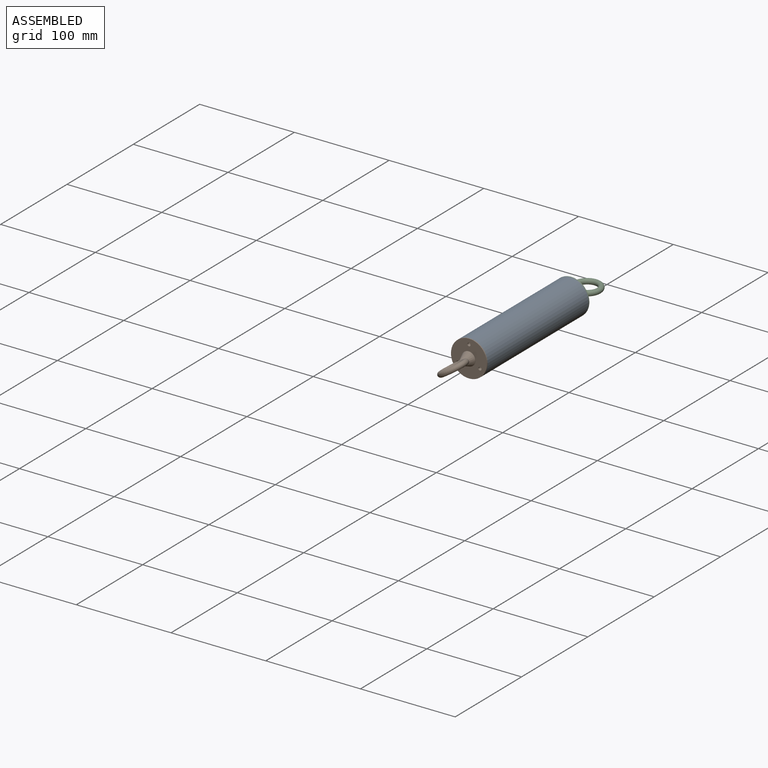
[diagram: assembled view]
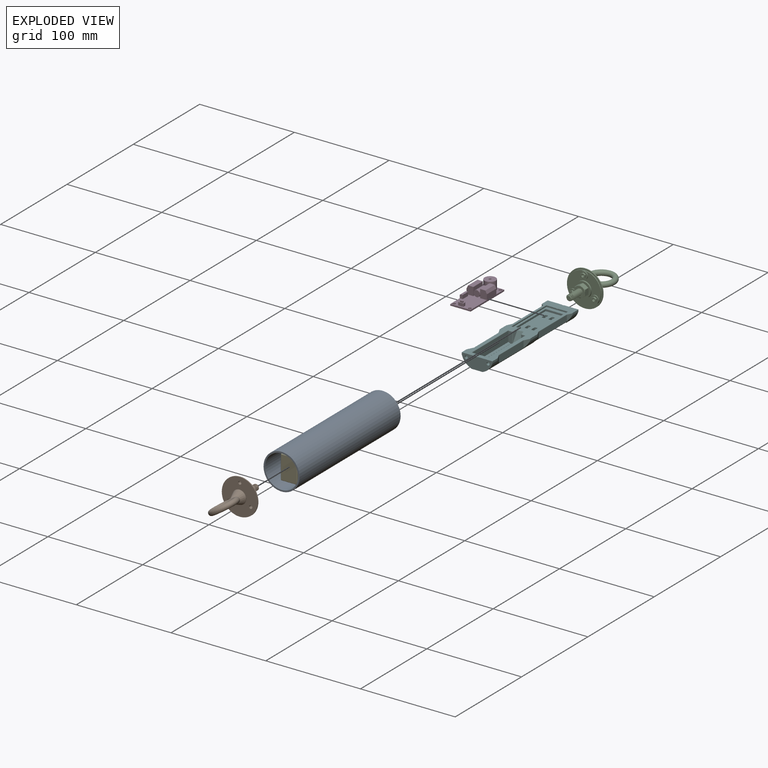
[diagram: exploded view]
GUIDED TOUR — MATED ASSEMBLY WITH SUBASSEMBLIES (Onshape document c6380fa0b7ce528e648f7f08, AutoMate assembly c6380fa0b7ce528e648f7f08_b65dfd8f77710f15b02fda3f_d95c44d1b8b798e81eafed5a_default)

This assembly has 24 component occurrences arranged in 6 top-level units: 4 individual components plus 2 subassemblies (S0, S1). The tour has two levels: first the top level, where each subassembly is treated as one rigid unit; then each subassembly is toured internally in its own section (nesting deeper than one subassembly level is flattened into its subassembly's section).

Components are labeled P0..P23 across the whole record; subassembly units are labeled S0..S1. A mate is a constraint between two units; its type names the relative motion it leaves free:
  CYLINDRICAL — leaves both rotation about and translation along the listed axis free,
  PLANAR — leaves sliding in the plane through the listed point (normal = the listed direction) and rotation about that normal free,
  SLIDER — leaves translation along the listed axis free.
Axis/direction vectors are unit vectors and 'through' points are millimeter coordinates, both in the assembly's world frame.

TOP-LEVEL MATES (between units; each subassembly's internal mates are listed in its own section)
  1. PLANAR "Planar 5": P13 <-> P19, direction (0.000, -1.000, 0.000) through (16.71, -214.99, -48.51) mm
  2. PLANAR "Planar 4": S0 <-> P0, direction (0.000, 1.000, 0.000) through (16.97, -231.22, -46.19) mm
  3. CYLINDRICAL "Cylindrical 1": P19 <-> S1, axis (0.000, 1.000, 0.000) through (28.51, -90.45, -52.85) mm
  4. PLANAR "Planar 1": P13 <-> P19, direction (-1.000, 0.000, 0.000) through (7.97, -192.76, -48.51) mm
  5. CYLINDRICAL "Cylindrical 5": P0 <-> S1, axis (0.000, 1.000, 0.000) through (16.97, -78.82, -46.19) mm
  6. CYLINDRICAL "Cylindrical 3": S0 <-> P19, axis (0.000, 1.000, 0.000) through (28.51, -229.21, -52.85) mm
  7. CYLINDRICAL "Cylindrical 4": S0 <-> P19, axis (0.000, 1.000, 0.000) through (5.44, -229.21, -52.85) mm
  8. PLANAR "Planar 3": P0 <-> S1, direction (0.000, 1.000, 0.000) through (16.97, -78.82, -46.19) mm
  9. CYLINDRICAL "Cylindrical 2": P19 <-> S1, axis (0.000, 1.000, 0.000) through (5.44, -90.45, -52.85) mm
  10. PLANAR "Planar 2": P13 <-> P19, direction (0.000, 0.000, -1.000) through (16.71, -192.76, -61.21) mm

TOP-LEVEL ASSEMBLY ORDER
  1. P19 — the base component [order heuristic]
  2. S0 [order heuristic]
  3. S1 [order heuristic]
  4. P6 [order heuristic]
  5. P13 [order heuristic]
  6. P0 [order heuristic]
Order-tag legend:
  [order heuristic] — this assembly is geometrically interlocked (no collision-free removal order exists), so components are listed in mate-graph order; insertion feasibility is not verified.

Of the 24 component occurrences, 3 carry the full construction recipe — the FeatureScript program that regenerates the part's solid from scratch; the rest are supplied as boundary geometry only. Each toured unit is shown spotlighted twice — assembled, then exploded with a leader line back to its socket (green = recipe-attached component, orange = geometry-only, blue = subassembly unit; the rest desaturated gray).
NOTE — this tour is split across 2 documents so each fits a 32k-token context. This is document 1: the component sections continue in the remaining 1 document, each repeating the header above.
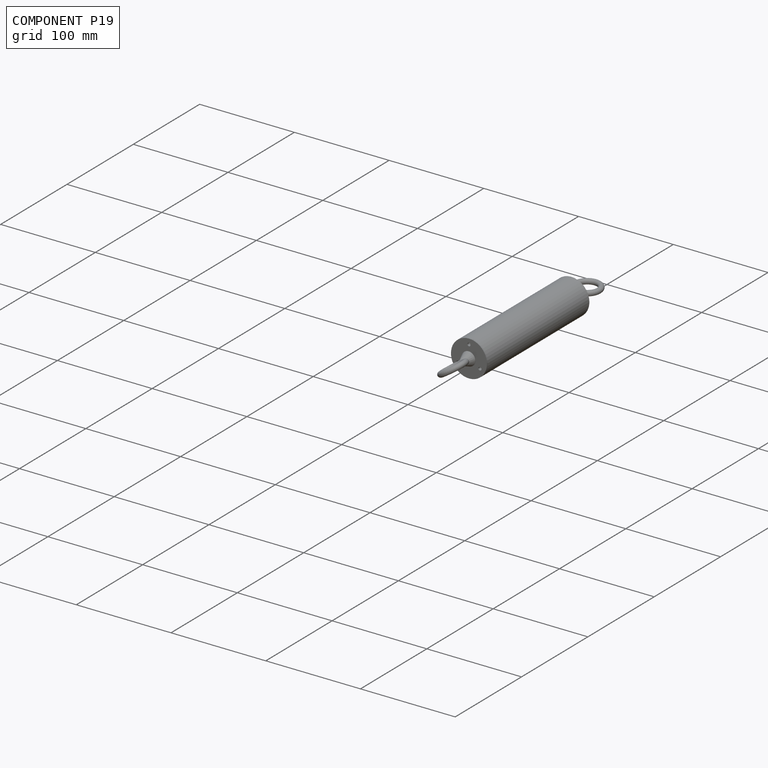
[diagram: component P19 — assembled]
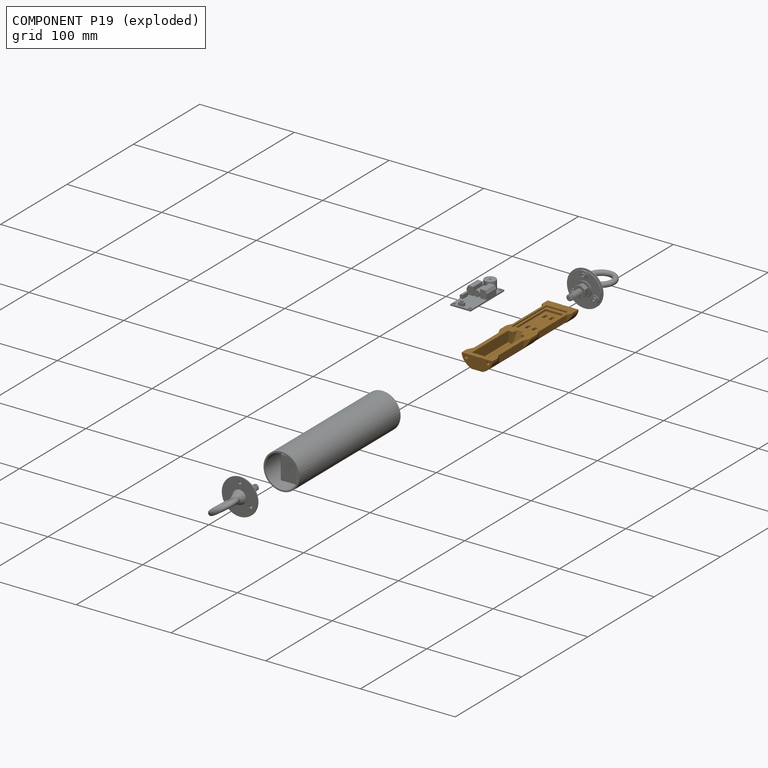
[diagram: component P19 — exploded]
COMPONENT P19 — geometry summary (no construction recipe available for this part):
  bounding box: 129.5 x 33.2 x 13.0 mm
  B-rep topology: 1 solid, 123 faces, 666 edges
  volume: 18228 mm^3 (33% of its bounding box)
Held by: PLANAR mate "Planar 5" to P13; CYLINDRICAL mate "Cylindrical 1" to P2; PLANAR mate "Planar 1" to P13; CYLINDRICAL mate "Cylindrical 3" to P1; CYLINDRICAL mate "Cylindrical 4" to P1; CYLINDRICAL mate "Cylindrical 2" to P2; PLANAR mate "Planar 2" to P13.
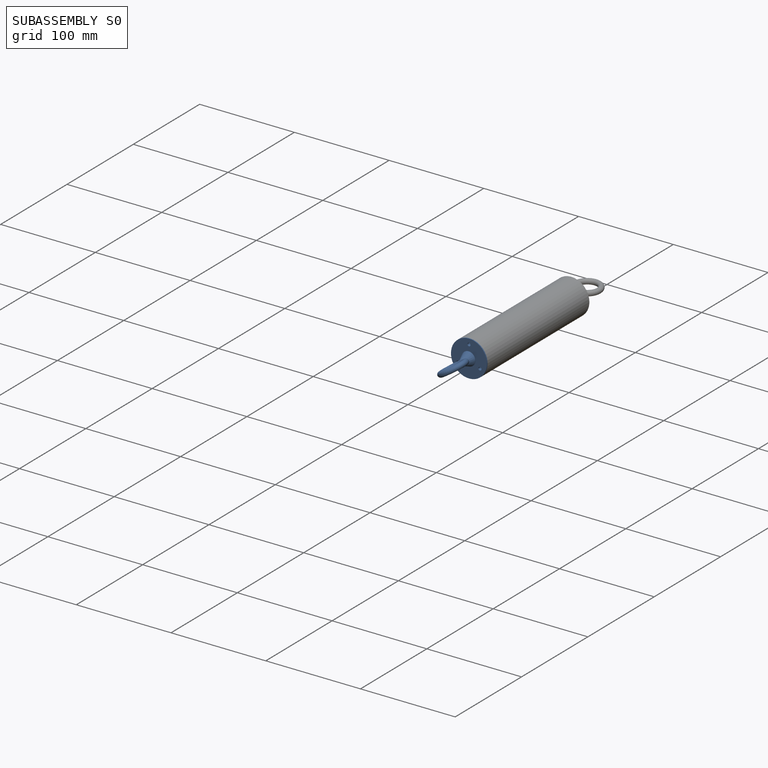
[diagram: subassembly S0 — assembled]
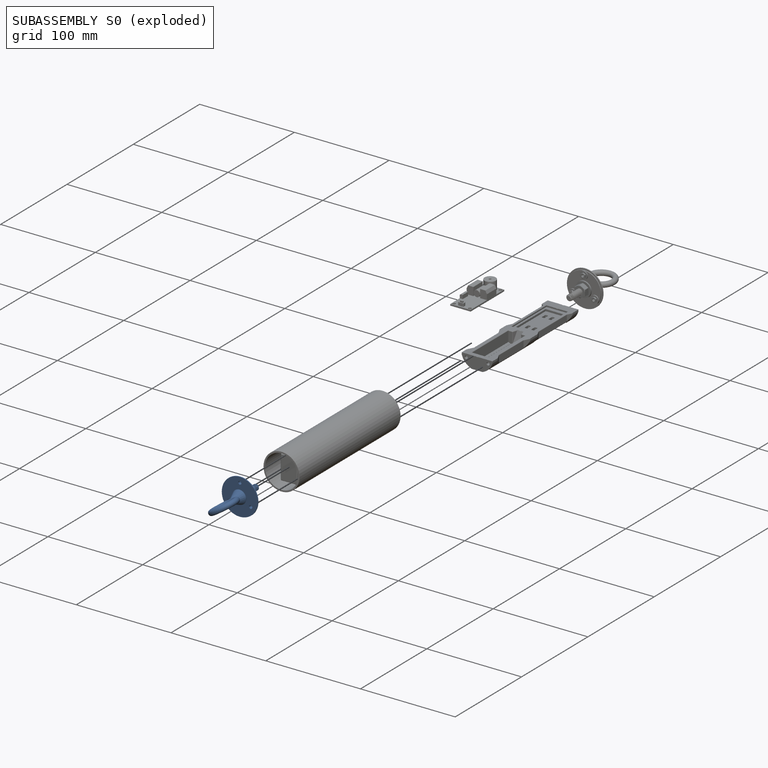
[diagram: subassembly S0 — exploded]
SUBASSEMBLY S0 — 10 components (P1, P3, P4, P11, P12, P14, P15, P18, P20, P23), of which 1 recipe-attached; toured below.
Held by: PLANAR mate "Planar 4" to P0; CYLINDRICAL mate "Cylindrical 3" to P19; CYLINDRICAL mate "Cylindrical 4" to P19.
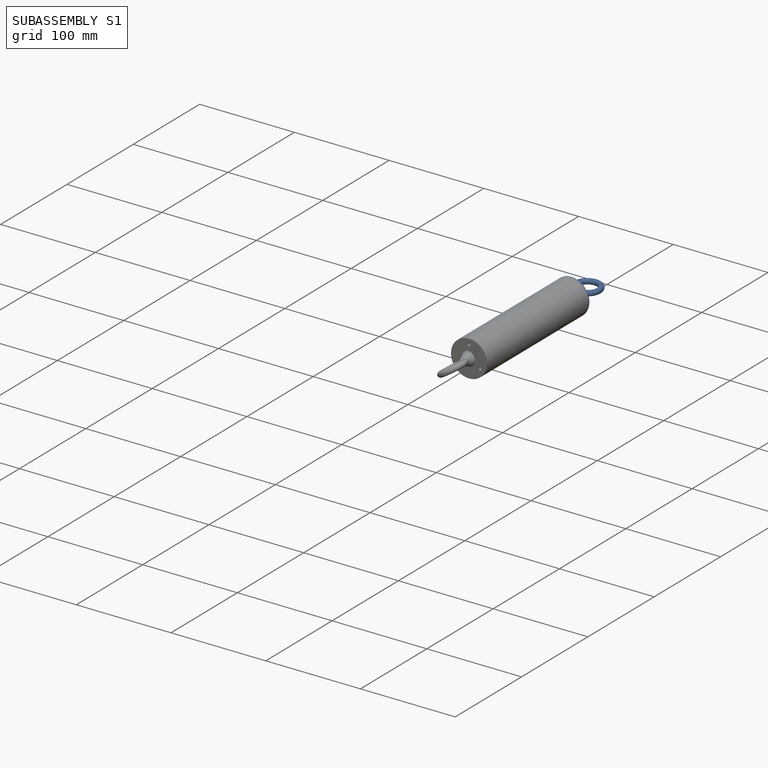
[diagram: subassembly S1 — assembled]
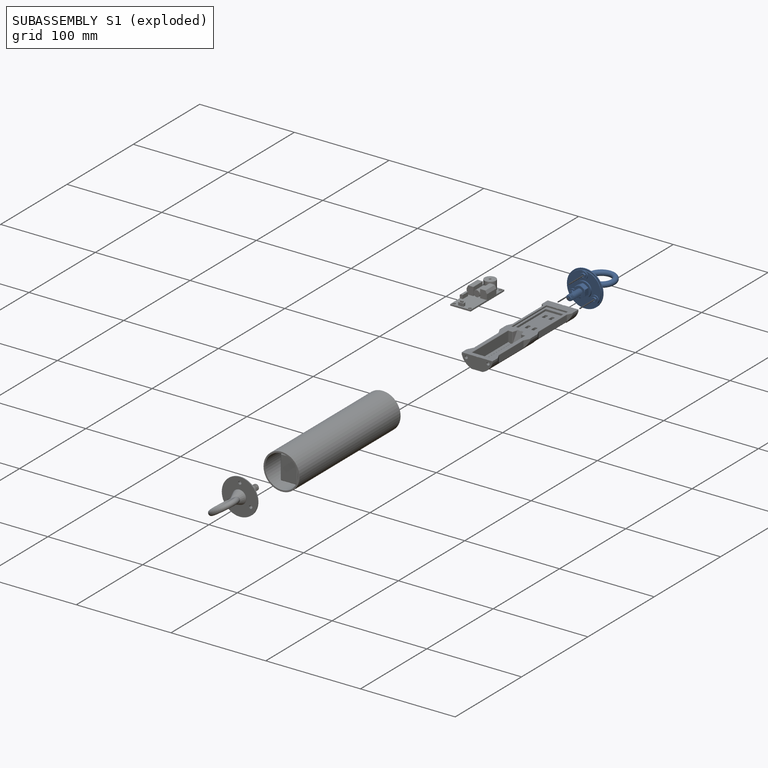
[diagram: subassembly S1 — exploded]
SUBASSEMBLY S1 — 10 components (P2, P5, P7, P8, P9, P10, P16, P17, P21, P22), of which 1 recipe-attached; toured below.
Held by: CYLINDRICAL mate "Cylindrical 1" to P19; CYLINDRICAL mate "Cylindrical 5" to P0; PLANAR mate "Planar 3" to P0; CYLINDRICAL mate "Cylindrical 2" to P19.
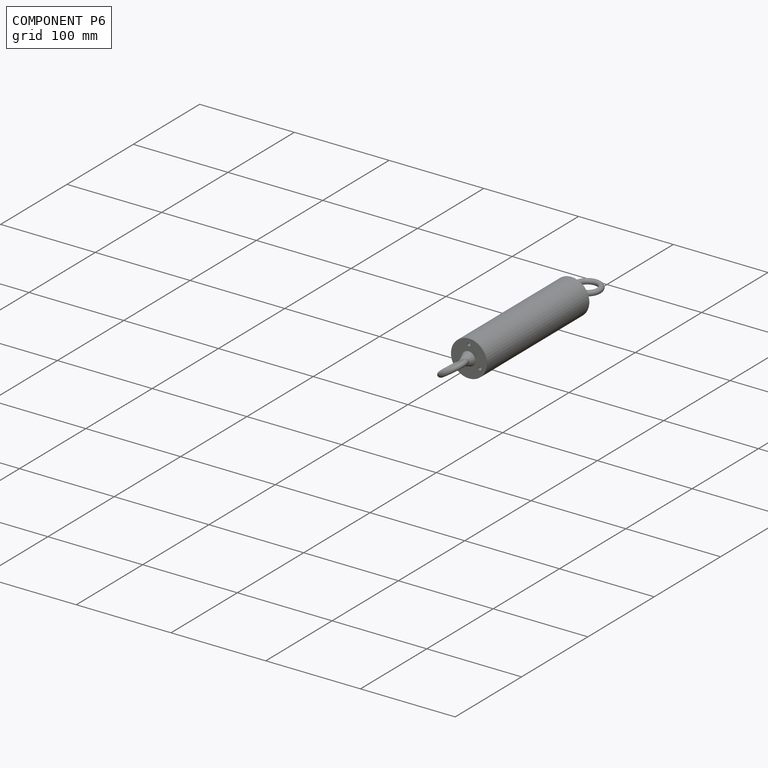
[diagram: component P6 — assembled]
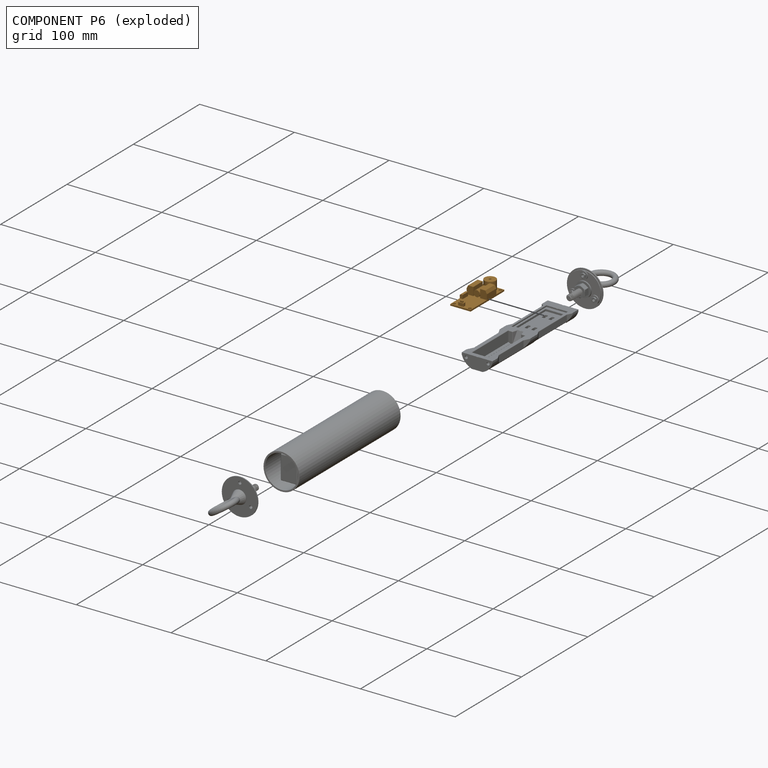
[diagram: component P6 — exploded]
COMPONENT P6 — geometry summary (no construction recipe available for this part):
  bounding box: 50.8 x 21.4 x 13.5 mm
  B-rep topology: 1 solid, 140 faces, 650 edges
  volume: 5264 mm^3 (36% of its bounding box)
Held by: no mates (free).
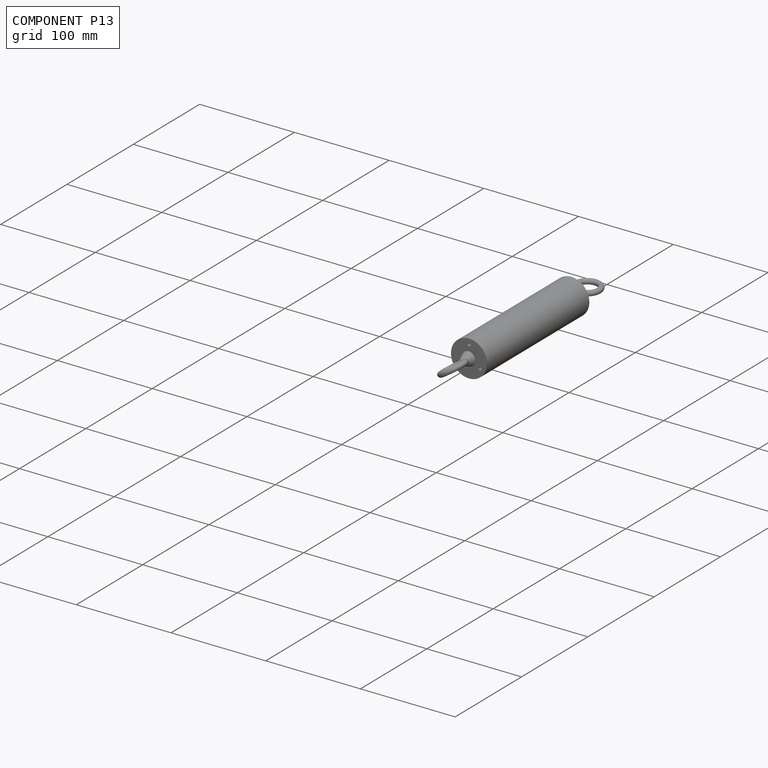
[diagram: component P13 — assembled]
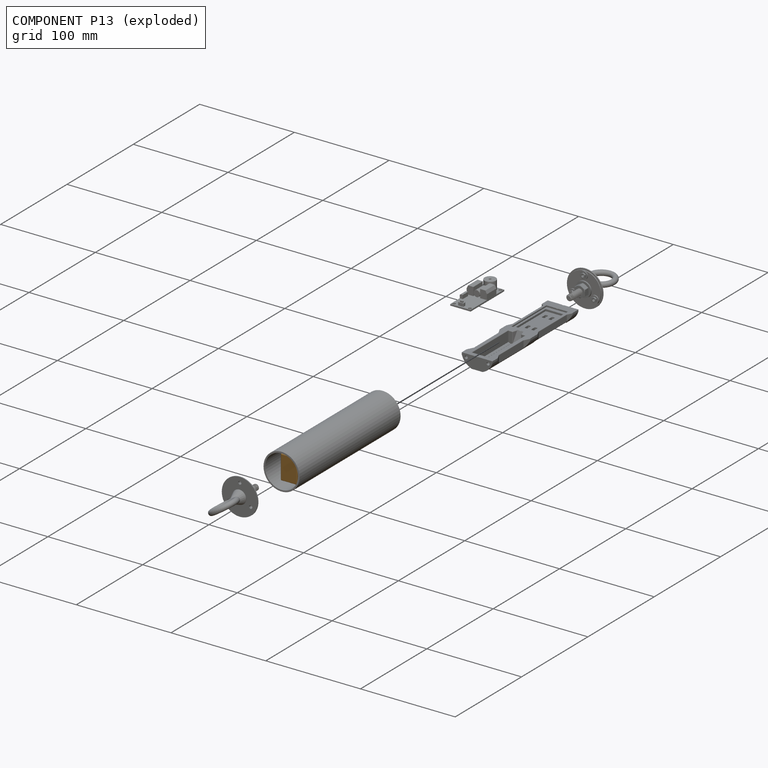
[diagram: component P13 — exploded]
COMPONENT P13 — geometry summary (no construction recipe available for this part):
  bounding box: 49.2 x 25.4 x 17.5 mm
  B-rep topology: 1 solid, 30 faces, 116 edges
  volume: 19987 mm^3 (92% of its bounding box)
  symmetry: mirror-symmetric across its y mid-plane
Held by: PLANAR mate "Planar 5" to P19; PLANAR mate "Planar 1" to P19; PLANAR mate "Planar 2" to P19.
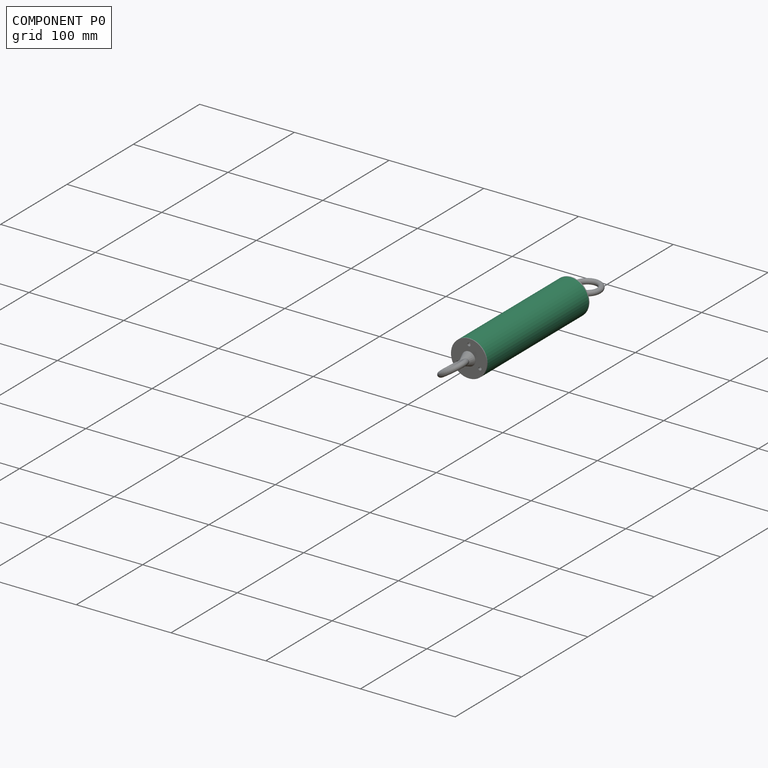
[diagram: component P0 — assembled]
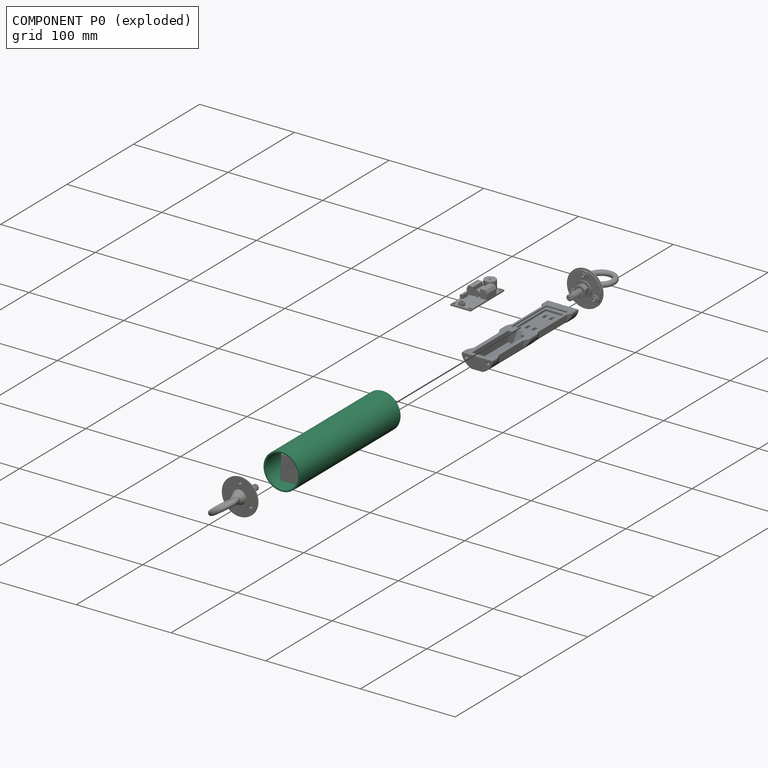
[diagram: component P0 — exploded]
COMPONENT P0 — recipe-attached (CADFS 00159999, mesh-verified: the recipe's output STEP matches this component's geometry to below the mesh-comparison resolution (tessellation chordal tolerance ~0.242 mm)).
Held by: PLANAR mate "Planar 4" to P1; CYLINDRICAL mate "Cylindrical 5" to P2; PLANAR mate "Planar 3" to P2.
Construction recipe (FeatureScript — the CAD program that rebuilds this solid; sketch coordinates are in the units given by the * unit suffixes, e.g. mm):

FeatureScript 1511;
import(path : "onshape/std/geometry.fs", version : "1511.0");
import(path : "onshape/std/common.fs", version : "1511.0");
const mm = millimeter;
const VERTEX = EntityType.VERTEX;
const EDGE = EntityType.EDGE;
const FACE = EntityType.FACE;
const BODY = EntityType.BODY;
function v(x, y){return vector(x, y);}
function OD(order){return orderDisambiguation(order);}
function OSD(set){return originalSetDisambiguation(set);}
function TD(topology){return topologyDisambiguation(topology);}
function TDD(query){return trueDependencyDisambiguation(query);}
function sQuery(a, b, c) {return sketchEntityQuery(a, b, c);}

annotation { "Feature Type Name" : "Feature", "Feature Type Description" : "" }
export const myFeature = defineFeature(function(context is Context, id is Id, definition is map)
    precondition{}
    {
        {
            var Q0;
            Q0=qCreatedBy(makeId("Right.planeOp"),FACE);
            var sketch = newSketch(context, id + "F0", { "sketchPlane" : qUnion([Q0])});
            skCircle(sketch, "E0", {"center": v(0, 0) * mm, "radius": 17.41 * mm});
            skCircle(sketch, "E1", {"center": v(0, 0) * mm, "radius": 19 * mm});
            skSolve(sketch);
        }
        {
            var Q0;
            Q0=makeQuery(id+"F0.imprint","IMPRINT",FACE,{"disambiguationData":[TD([[makeQuery(id+"F0.imprint","IMPRINT",EDGE,{"derivedFrom":sQuery(id+"F0.wireOp",EDGE,"E0")}),-1.0]])]});
            extrude(context, id + "F1", {"entities" : qUnion([Q0]), "depth" : 152.4 * mm});
        }
    });
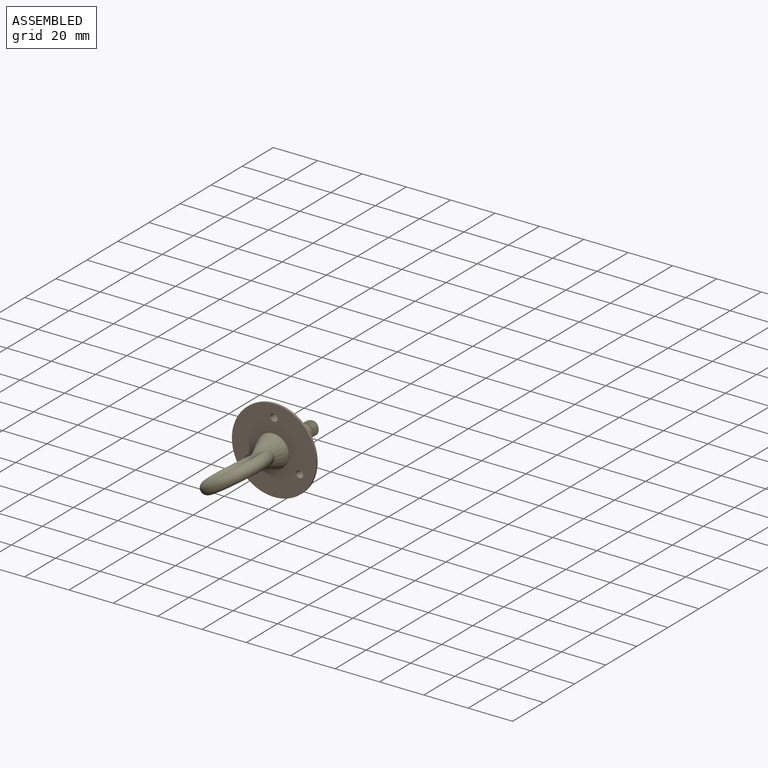
[diagram: subassembly S0 — assembled view]
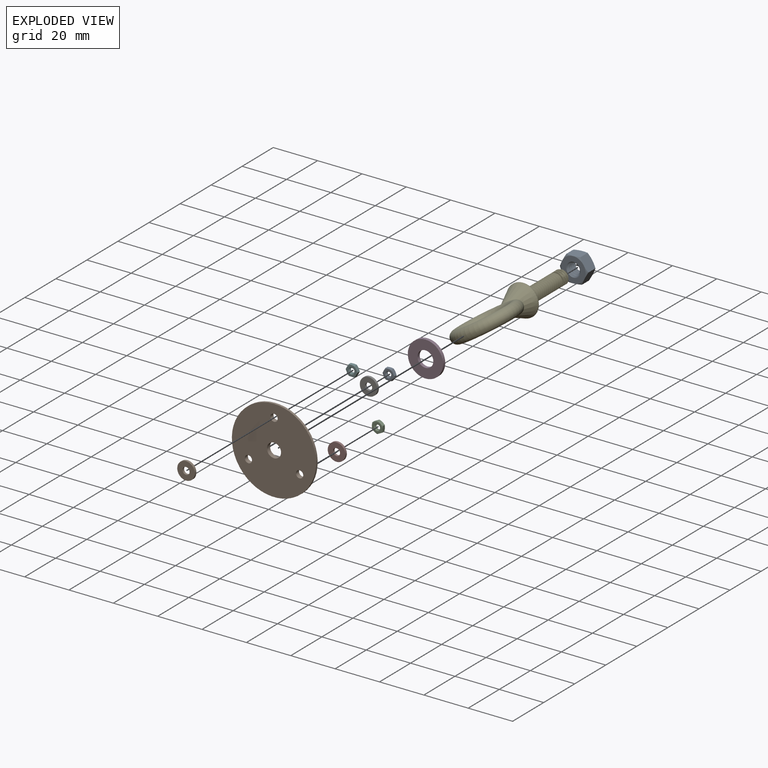
[diagram: subassembly S0 — exploded view]
SUBASSEMBLY S0 TOUR — 10 components, shown here in isolation at its own camera.

INTERNAL MATES
  1. PLANAR "Planar 3": P20 <-> P11, direction (0.000, -1.000, 0.000) through (16.97, -228.78, -46.19) mm
  2. PLANAR "Planar 1": P12 <-> P23, direction (0.000, 1.000, 0.000) through (19.63, -232.22, -44.45) mm
  3. CYLINDRICAL "Cylindrical 4": P15 <-> P23, axis (0.000, 1.000, 0.000) through (5.44, -229.21, -52.85) mm
  4. PLANAR "Planar 6": P3 <-> P23, direction (0.000, -1.000, 0.000) through (16.97, -230.22, -32.87) mm
  5. PLANAR "Planar 5": P1 <-> P15, direction (0.000, -1.000, 0.000) through (3.38, -229.21, -54.04) mm
  6. CYLINDRICAL "Cylindrical 6": P18 <-> P23, axis (0.000, 1.000, 0.000) through (28.51, -229.21, -52.85) mm
  7. CYLINDRICAL "Cylindrical 5": P3 <-> P23, axis (0.000, 1.000, 0.000) through (16.97, -229.21, -32.87) mm
  8. PLANAR "Planar 7": P18 <-> P23, direction (0.000, -1.000, 0.000) through (28.51, -230.22, -52.85) mm
  9. PLANAR "Planar 2": P23 <-> P11, direction (0.000, 1.000, 0.000) through (16.97, -230.22, -46.19) mm
  10. SLIDER "Slider 1": P11 <-> P12, axis (0.000, 1.000, 0.000) through (16.97, -228.78, -46.19) mm
  11. CYLINDRICAL "Cylindrical 2": P20 <-> P11, axis (0.000, -1.000, 0.000) through (16.97, -228.78, -46.19) mm
  12. CYLINDRICAL "Cylindrical 7": P4 <-> P23, axis (0.000, 1.000, 0.000) through (28.51, -227.62, -52.85) mm
  13. CYLINDRICAL "Cylindrical 3": P1 <-> P23, axis (0.000, 1.000, 0.000) through (5.44, -227.62, -52.85) mm
  14. PLANAR "Planar 4": P23 <-> P15, direction (0.000, 1.000, 0.000) through (16.97, -230.22, -46.19) mm
  15. CYLINDRICAL "Cylindrical 1": P23 <-> P12, axis (0.000, -1.000, 0.000) through (16.97, -232.22, -46.19) mm
  16. PLANAR "Planar 8": P4 <-> P18, direction (0.000, -1.000, 0.000) through (28.51, -229.21, -52.85) mm
  17. PLANAR "Planar 9": P14 <-> P3, direction (0.000, -1.000, 0.000) through (16.97, -229.21, -32.87) mm
  18. CYLINDRICAL "Cylindrical 8": P14 <-> P3, axis (0.000, 1.000, 0.000) through (16.97, -227.62, -32.87) mm
  19. CYLINDRICAL "Cylindrical 4": P15 <-> P23, axis (0.000, 1.000, 0.000) through (5.44, -229.21, -52.85) mm
  20. CYLINDRICAL "Cylindrical 5": P3 <-> P23, axis (0.000, 1.000, 0.000) through (16.97, -229.21, -32.87) mm
  21. PLANAR "Planar 2": P23 <-> P11, direction (0.000, 1.000, 0.000) through (16.97, -230.22, -46.19) mm
  22. PLANAR "Planar 3": P20 <-> P11, direction (0.000, -1.000, 0.000) through (16.97, -228.78, -46.19) mm
  23. PLANAR "Planar 4": P23 <-> P15, direction (0.000, 1.000, 0.000) through (16.97, -230.22, -46.19) mm
  24. PLANAR "Planar 9": P14 <-> P3, direction (0.000, -1.000, 0.000) through (16.97, -229.21, -32.87) mm
  25. PLANAR "Planar 6": P3 <-> P23, direction (0.000, -1.000, 0.000) through (16.97, -230.22, -32.87) mm
  26. CYLINDRICAL "Cylindrical 3": P1 <-> P23, axis (0.000, 1.000, 0.000) through (5.44, -227.62, -52.85) mm
  27. PLANAR "Planar 7": P18 <-> P23, direction (0.000, -1.000, 0.000) through (28.51, -230.22, -52.85) mm
  28. SLIDER "Slider 1": P11 <-> P12, axis (0.000, 1.000, 0.000) through (16.97, -228.78, -46.19) mm
  29. PLANAR "Planar 5": P1 <-> P15, direction (0.000, -1.000, 0.000) through (3.38, -229.21, -54.04) mm
  30. CYLINDRICAL "Cylindrical 2": P20 <-> P11, axis (0.000, -1.000, 0.000) through (16.97, -228.78, -46.19) mm
  31. CYLINDRICAL "Cylindrical 6": P18 <-> P23, axis (0.000, 1.000, 0.000) through (28.51, -229.21, -52.85) mm
  32. CYLINDRICAL "Cylindrical 8": P14 <-> P3, axis (0.000, 1.000, 0.000) through (16.97, -227.62, -32.87) mm
  33. PLANAR "Planar 1": P12 <-> P23, direction (0.000, 1.000, 0.000) through (19.63, -232.22, -44.45) mm
  34. CYLINDRICAL "Cylindrical 7": P4 <-> P23, axis (0.000, 1.000, 0.000) through (28.51, -227.62, -52.85) mm
  35. PLANAR "Planar 8": P4 <-> P18, direction (0.000, -1.000, 0.000) through (28.51, -229.21, -52.85) mm
  36. CYLINDRICAL "Cylindrical 1": P23 <-> P12, axis (0.000, -1.000, 0.000) through (16.97, -232.22, -46.19) mm

ASSEMBLY ORDER (within the subassembly)
  1. P23 — the base component [order heuristic]
  2. P11 — core [order heuristic]
  3. P12 — core [order heuristic]
  4. P20 — core [order heuristic]
  5. P15 [order verified]
  6. P18 [order verified]
  7. P1 [order verified]
  8. P4 [order verified]
  9. P3 [order verified]
  10. P14 [order verified]
Order-tag legend:
  [order verified] — this step's position reverses a verified removal order: the component was checked to insert without passing through the ones already placed.
  [order heuristic] — the first 4 components form the assembly's core: parts whose collision-free extraction could not be verified, listed in mate-graph order.
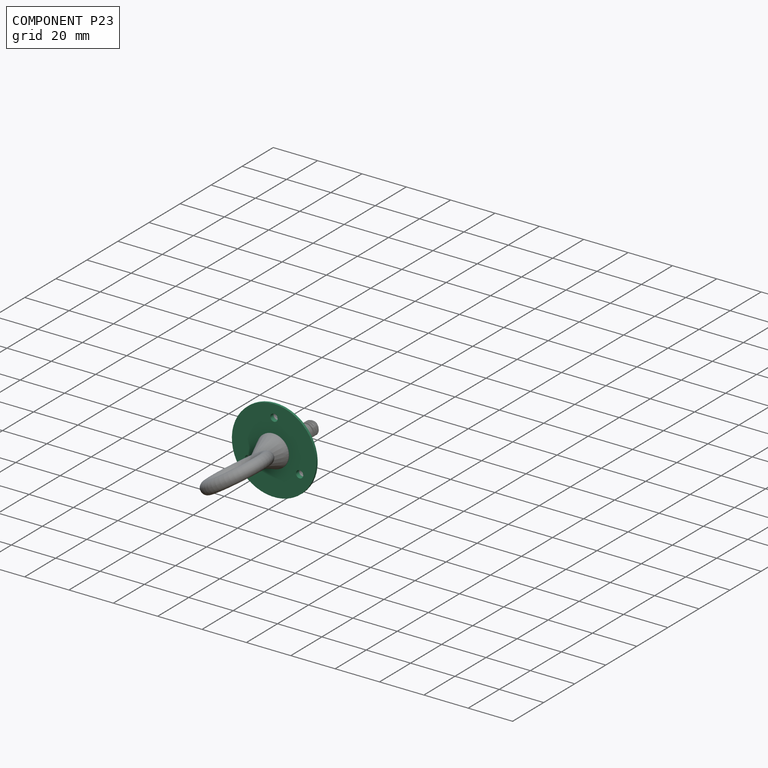
[diagram: component P23 — assembled]
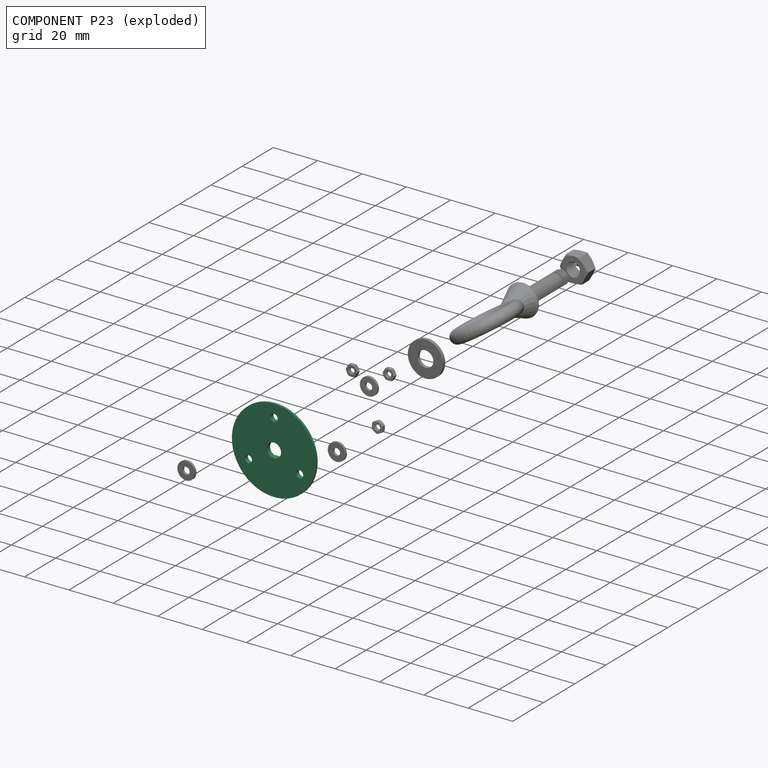
[diagram: component P23 — exploded]
COMPONENT P23 — recipe-attached (CADFS 00160002, mesh-verified: the recipe's output STEP matches this component's geometry to below the mesh-comparison resolution (tessellation chordal tolerance ~0.0806 mm)).
Held by: PLANAR mate "Planar 1" to P12; CYLINDRICAL mate "Cylindrical 4" to P15; PLANAR mate "Planar 6" to P3; CYLINDRICAL mate "Cylindrical 6" to P18; CYLINDRICAL mate "Cylindrical 5" to P3; PLANAR mate "Planar 7" to P18; PLANAR mate "Planar 2" to P11; CYLINDRICAL mate "Cylindrical 7" to P4; CYLINDRICAL mate "Cylindrical 3" to P1; PLANAR mate "Planar 4" to P15; CYLINDRICAL mate "Cylindrical 1" to P12; CYLINDRICAL mate "Cylindrical 4" to P15; CYLINDRICAL mate "Cylindrical 5" to P3; PLANAR mate "Planar 2" to P11; PLANAR mate "Planar 4" to P15; PLANAR mate "Planar 6" to P3; CYLINDRICAL mate "Cylindrical 3" to P1; PLANAR mate "Planar 7" to P18; CYLINDRICAL mate "Cylindrical 6" to P18; PLANAR mate "Planar 1" to P12; CYLINDRICAL mate "Cylindrical 7" to P4; CYLINDRICAL mate "Cylindrical 1" to P12.
Construction recipe (FeatureScript — the CAD program that rebuilds this solid; sketch coordinates are in the units given by the * unit suffixes, e.g. mm):

FeatureScript 1511;
import(path : "onshape/std/geometry.fs", version : "1511.0");
import(path : "onshape/std/common.fs", version : "1511.0");
const mm = millimeter;
const VERTEX = EntityType.VERTEX;
const EDGE = EntityType.EDGE;
const FACE = EntityType.FACE;
const BODY = EntityType.BODY;
function v(x, y){return vector(x, y);}
function OD(order){return orderDisambiguation(order);}
function OSD(set){return originalSetDisambiguation(set);}
function TD(topology){return topologyDisambiguation(topology);}
function TDD(query){return trueDependencyDisambiguation(query);}
function sQuery(a, b, c) {return sketchEntityQuery(a, b, c);}

annotation { "Feature Type Name" : "Feature", "Feature Type Description" : "" }
export const myFeature = defineFeature(function(context is Context, id is Id, definition is map)
    precondition{}
    {
        {
            var Q0;
            Q0=qCreatedBy(makeId("Front.planeOp"),FACE);
            var sketch = newSketch(context, id + "F0", { "sketchPlane" : qUnion([Q0])});
            skCircle(sketch, "E0", {"center": v(0, 0) * mm, "radius": 17.5 * mm});
            skSolve(sketch);
        }
        {
            var Q0;
            Q0 = qSketchRegion(id + "F0", true);
            extrude(context, id + "F1", {"entities" : qUnion([Q0]), "depth" : 1 * mm});
        }
        {
            var Q0;
            Q0=makeQuery(id+"F1.opExtrude","CAP_FACE",FACE,{"disambiguationData":[OSD([sQuery(id+"F0.wireOp",EDGE,"E0")])],"isStart":true});
            var sketch = newSketch(context, id + "F2", { "sketchPlane" : qUnion([Q0])});
            skCircle(sketch, "E1", {"center": v(0, 0) * mm, "radius": 19 * mm});
            skSolve(sketch);
        }
        {
            var Q0;
            Q0 = qSketchRegion(id + "F2", true);
            extrude(context, id + "F3", {"entities" : qUnion([Q0]), "operationType" : NewBodyOperationType.ADD, "depth" : 1 * mm});
        }
        {
            var Q0;
            Q0=makeQuery(id+"F1.opExtrude","CAP_FACE",FACE,{"disambiguationData":[OSD([sQuery(id+"F0.wireOp",EDGE,"E0")])],"isStart":false});
            var sketch = newSketch(context, id + "F4", { "sketchPlane" : qUnion([Q0])});
            skCircle(sketch, "E2", {"center": v(0, 0) * mm, "radius": 3.18 * mm});
            skSolve(sketch);
        }
        {
            var Q0;
            Q0 = qSketchRegion(id + "F4", true);
            extrude(context, id + "F5", {"entities" : qUnion([Q0]), "operationType" : NewBodyOperationType.REMOVE, "oppositeDirection" : true, "depth" : 25.4 * mm});
        }
        {
            var Q0;
            Q0=makeQuery(id+"F1.opExtrude","CAP_FACE",FACE,{"disambiguationData":[OSD([sQuery(id+"F0.wireOp",EDGE,"E0")])],"isStart":false});
            var sketch = newSketch(context, id + "F6", { "sketchPlane" : qUnion([Q0])});
            skCircle(sketch, "E3", {"center": v(0, 13.32) * mm, "radius": 1.64 * mm});
            skCircle(sketch, "E4.1.0", {"center": v(-11.54, -6.66) * mm, "radius": 1.64 * mm});
            skCircle(sketch, "E4.2.0", {"center": v(11.54, -6.66) * mm, "radius": 1.64 * mm});
            skPoint(sketch, "E4.center", {"position": v(0, 0) * mm});
            skSolve(sketch);
        }
        {
            var Q0;
            Q0 = qSketchRegion(id + "F6", true);
            extrude(context, id + "F7", {"entities" : qUnion([Q0]), "operationType" : NewBodyOperationType.REMOVE, "oppositeDirection" : true, "depth" : 25.4 * mm});
        }
    });
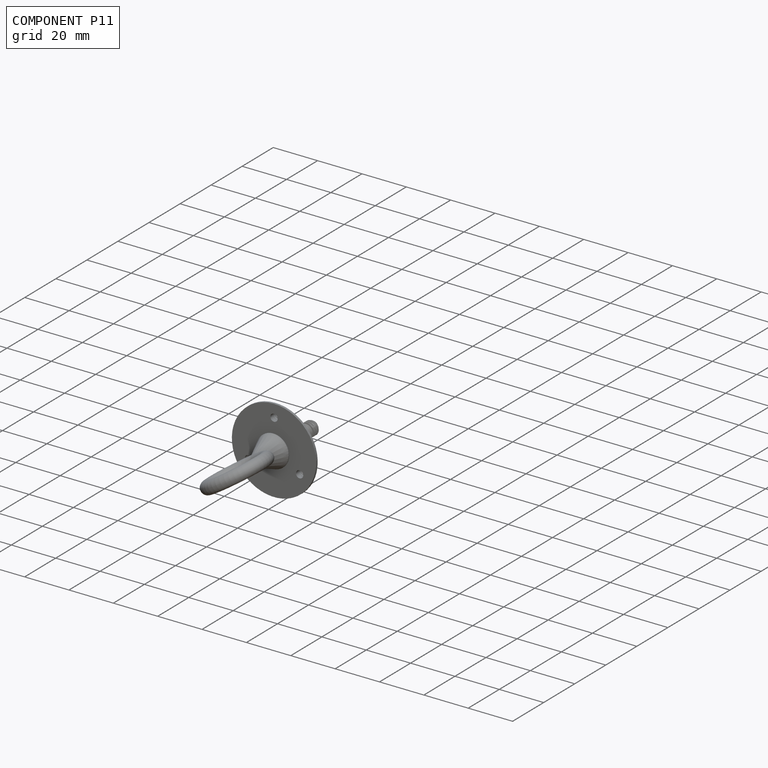
[diagram: component P11 — assembled]
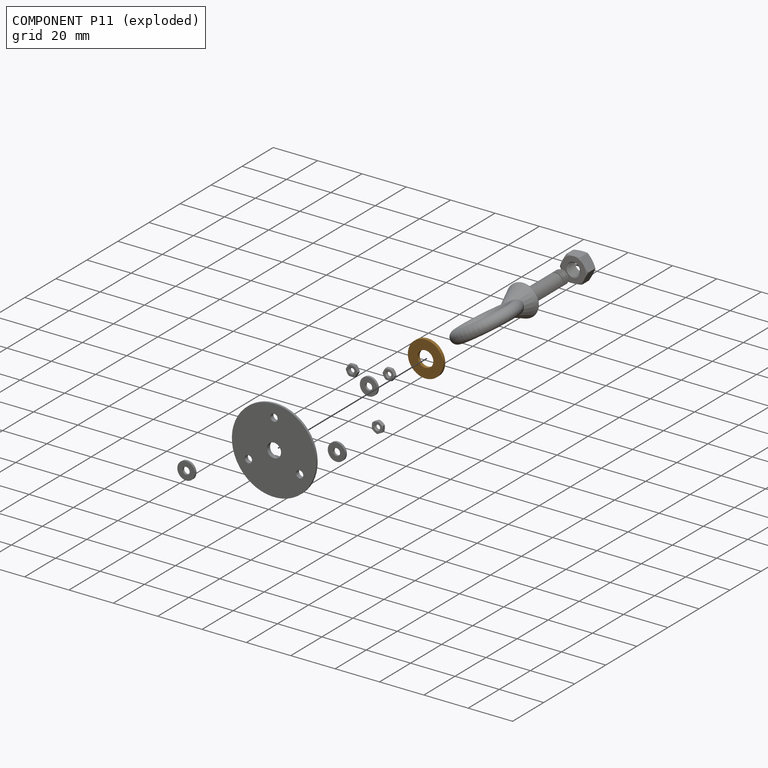
[diagram: component P11 — exploded]
COMPONENT P11 — geometry summary (no construction recipe available for this part):
  bounding box: 15.9 x 15.9 x 1.4 mm
  B-rep topology: 1 solid, 4 faces, 12 edges
  volume: 229 mm^3 (63% of its bounding box)
  symmetry: 2-fold rotationally symmetric about the x axis; 2-fold rotationally symmetric about the y axis; revolution-symmetric about the z axis through its bounding-box center; mirror-symmetric across its x mid-plane, y mid-plane, z mid-plane
Held by: PLANAR mate "Planar 3" to P20; PLANAR mate "Planar 2" to P23; SLIDER mate "Slider 1" to P12; CYLINDRICAL mate "Cylindrical 2" to P20; PLANAR mate "Planar 2" to P23; PLANAR mate "Planar 3" to P20; SLIDER mate "Slider 1" to P12; CYLINDRICAL mate "Cylindrical 2" to P20.
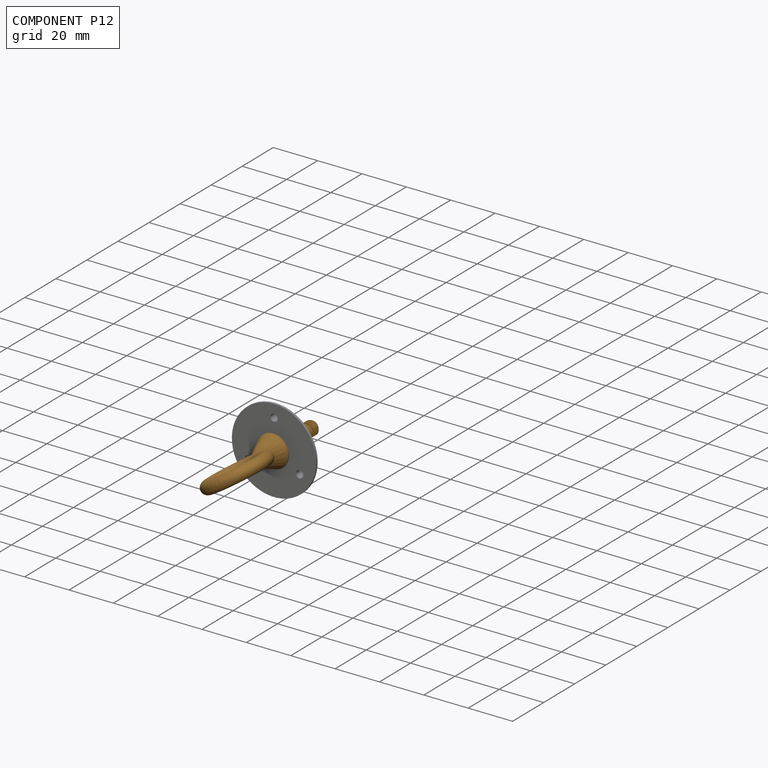
[diagram: component P12 — assembled]
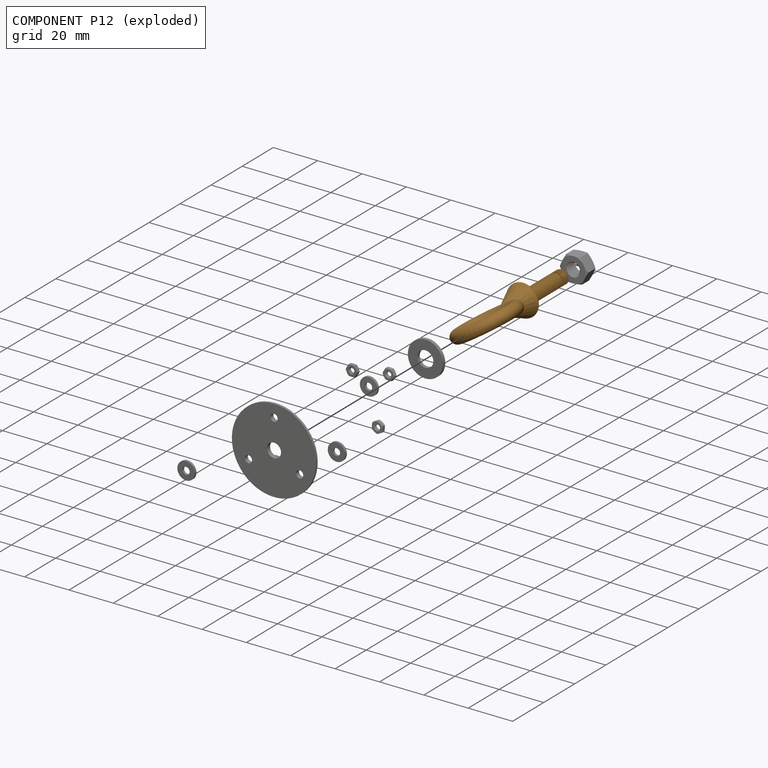
[diagram: component P12 — exploded]
COMPONENT P12 — geometry summary (no construction recipe available for this part):
  bounding box: 66.5 x 33.1 x 16.0 mm
  B-rep topology: 1 solid, 11 faces, 50 edges
  volume: 3433 mm^3 (10% of its bounding box)
Held by: PLANAR mate "Planar 1" to P23; SLIDER mate "Slider 1" to P11; CYLINDRICAL mate "Cylindrical 1" to P23; SLIDER mate "Slider 1" to P11; PLANAR mate "Planar 1" to P23; CYLINDRICAL mate "Cylindrical 1" to P23.
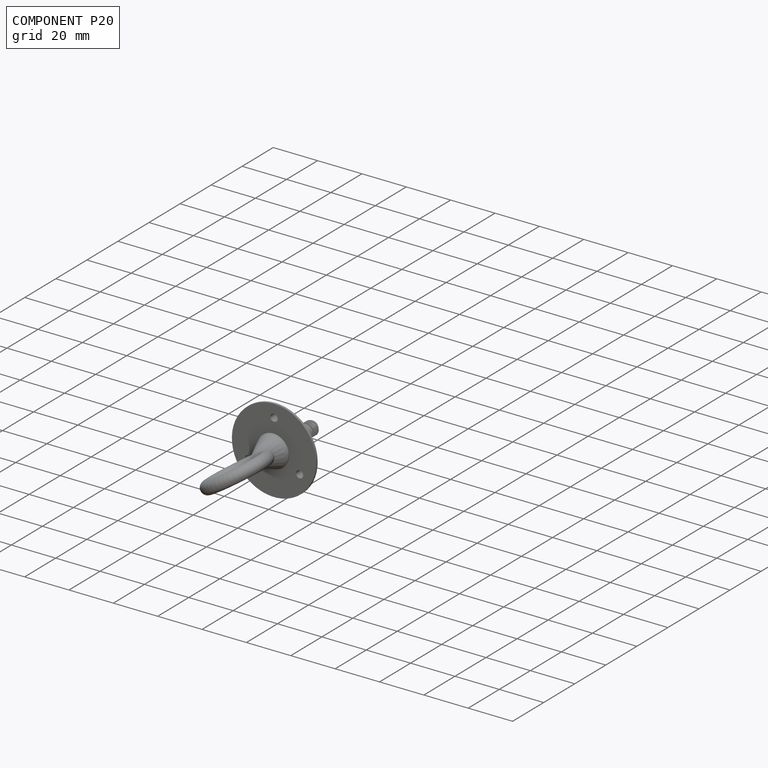
[diagram: component P20 — assembled]
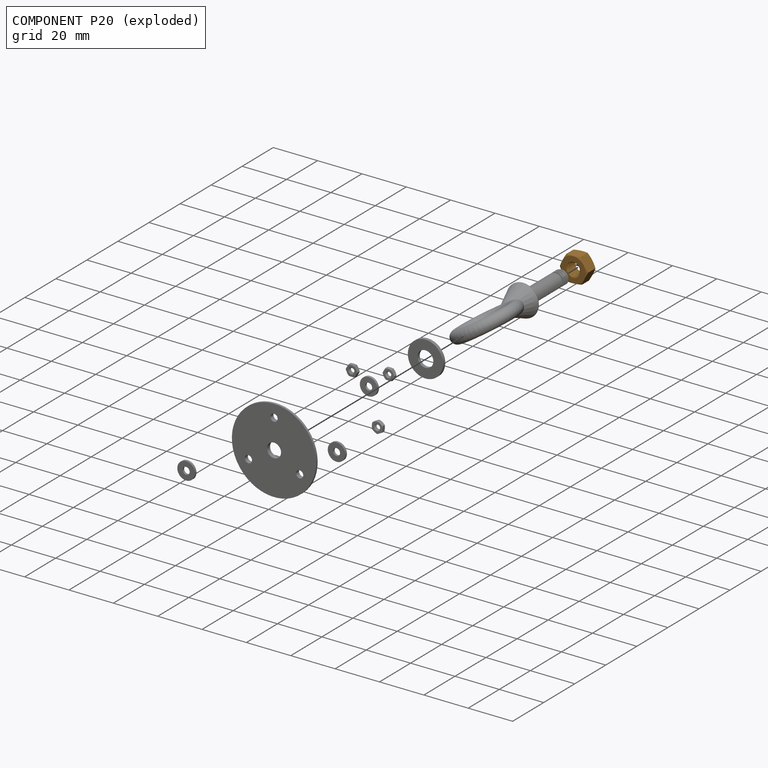
[diagram: component P20 — exploded]
COMPONENT P20 — geometry summary (no construction recipe available for this part):
  bounding box: 13.4 x 13.4 x 7.0 mm
  B-rep topology: 1 solid, 26 faces, 112 edges
  volume: 475 mm^3 (38% of its bounding box)
Held by: PLANAR mate "Planar 3" to P11; CYLINDRICAL mate "Cylindrical 2" to P11; PLANAR mate "Planar 3" to P11; CYLINDRICAL mate "Cylindrical 2" to P11.
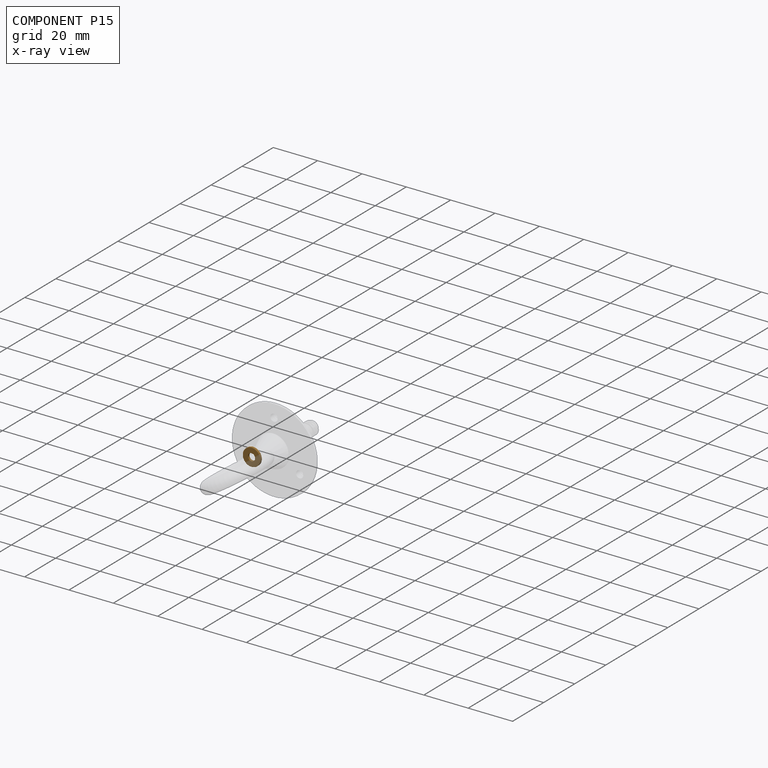
[diagram: component P15 — x-ray view]
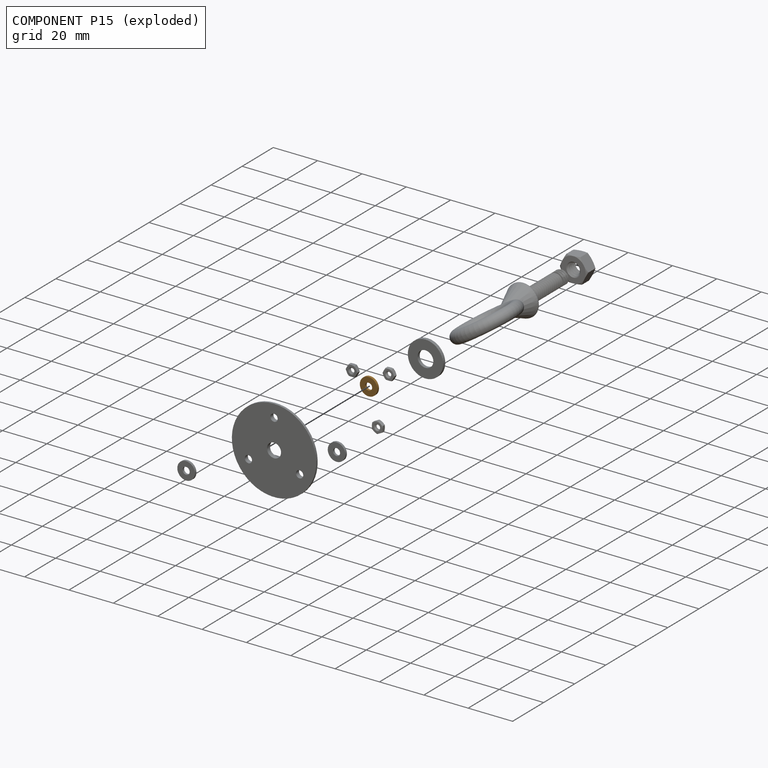
[diagram: component P15 — exploded]
COMPONENT P15 — geometry summary (no construction recipe available for this part):
  bounding box: 7.9 x 7.9 x 1.0 mm
  B-rep topology: 1 solid, 4 faces, 12 edges
  volume: 42 mm^3 (66% of its bounding box)
  symmetry: 2-fold rotationally symmetric about the x axis; 2-fold rotationally symmetric about the y axis; revolution-symmetric about the z axis through its bounding-box center; mirror-symmetric across its x mid-plane, y mid-plane, z mid-plane
Held by: CYLINDRICAL mate "Cylindrical 4" to P23; PLANAR mate "Planar 5" to P1; PLANAR mate "Planar 4" to P23; CYLINDRICAL mate "Cylindrical 4" to P23; PLANAR mate "Planar 4" to P23; PLANAR mate "Planar 5" to P1.
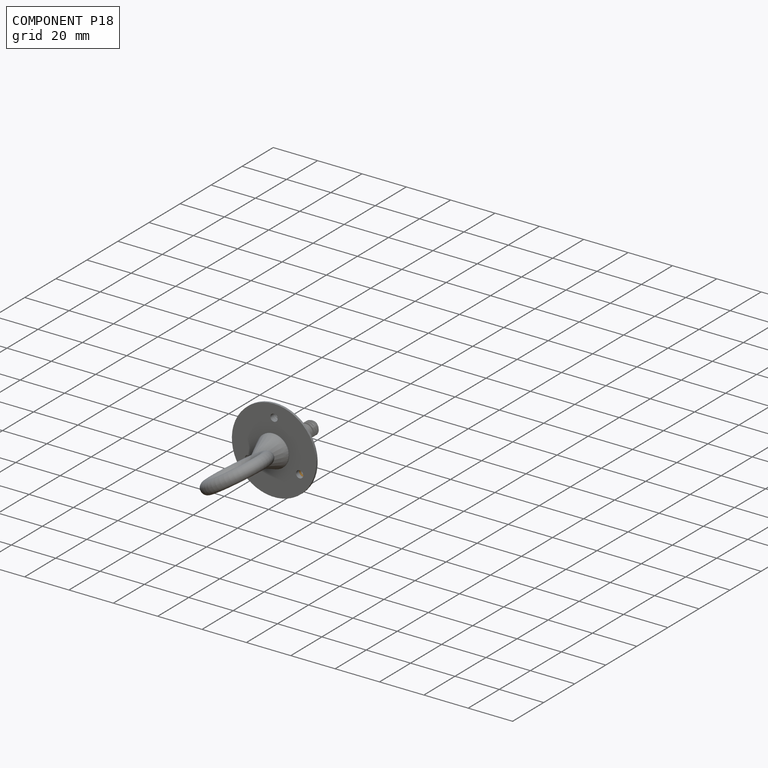
[diagram: component P18 — assembled]
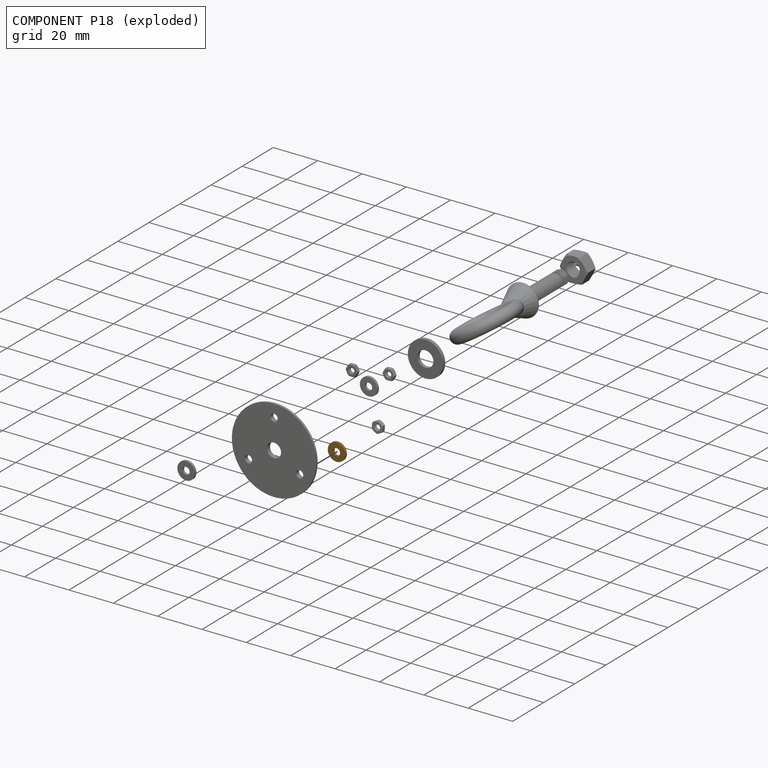
[diagram: component P18 — exploded]
COMPONENT P18 — geometry summary (no construction recipe available for this part):
  bounding box: 7.9 x 7.9 x 1.0 mm
  B-rep topology: 1 solid, 4 faces, 12 edges
  volume: 42 mm^3 (66% of its bounding box)
  symmetry: 2-fold rotationally symmetric about the x axis; 2-fold rotationally symmetric about the y axis; revolution-symmetric about the z axis through its bounding-box center; mirror-symmetric across its x mid-plane, y mid-plane, z mid-plane
Held by: CYLINDRICAL mate "Cylindrical 6" to P23; PLANAR mate "Planar 7" to P23; PLANAR mate "Planar 8" to P4; PLANAR mate "Planar 7" to P23; CYLINDRICAL mate "Cylindrical 6" to P23; PLANAR mate "Planar 8" to P4.
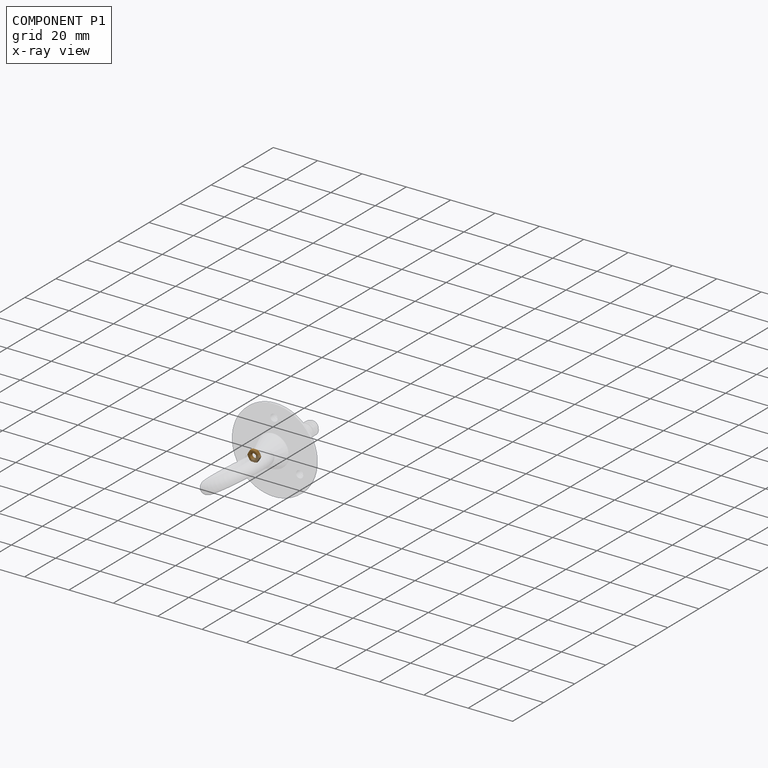
[diagram: component P1 — x-ray view]
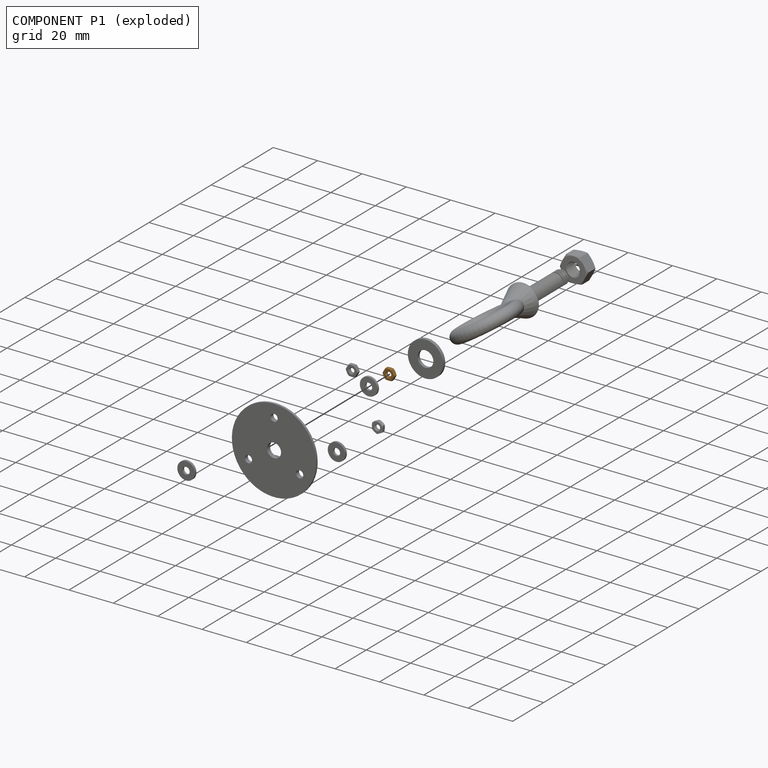
[diagram: component P1 — exploded]
COMPONENT P1 — geometry summary (no construction recipe available for this part):
  bounding box: 5.7 x 5.7 x 2.4 mm
  B-rep topology: 1 solid, 26 faces, 112 edges
  volume: 25 mm^3 (32% of its bounding box)
Held by: PLANAR mate "Planar 5" to P15; CYLINDRICAL mate "Cylindrical 3" to P23; CYLINDRICAL mate "Cylindrical 3" to P23; PLANAR mate "Planar 5" to P15.
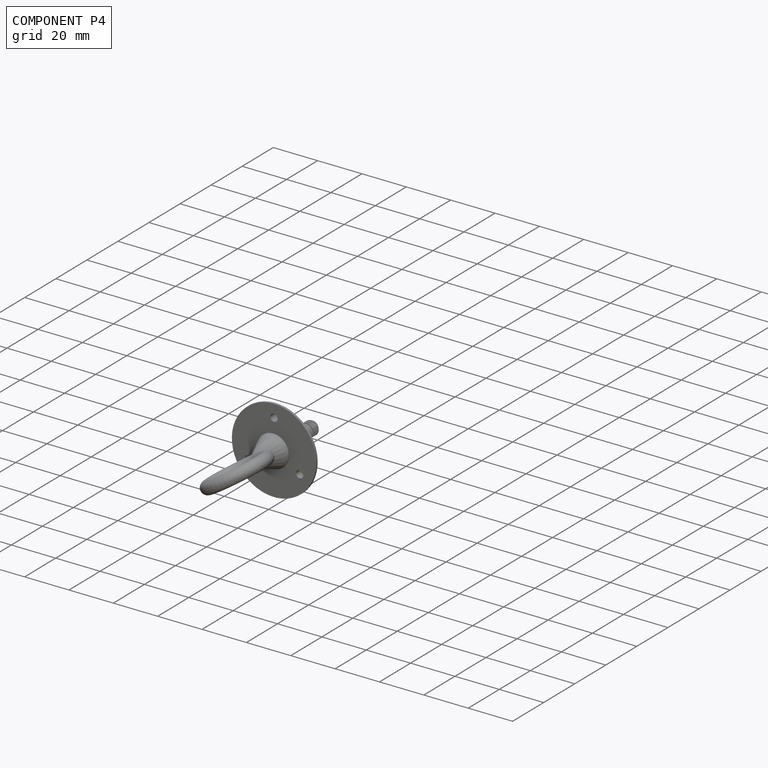
[diagram: component P4 — assembled]
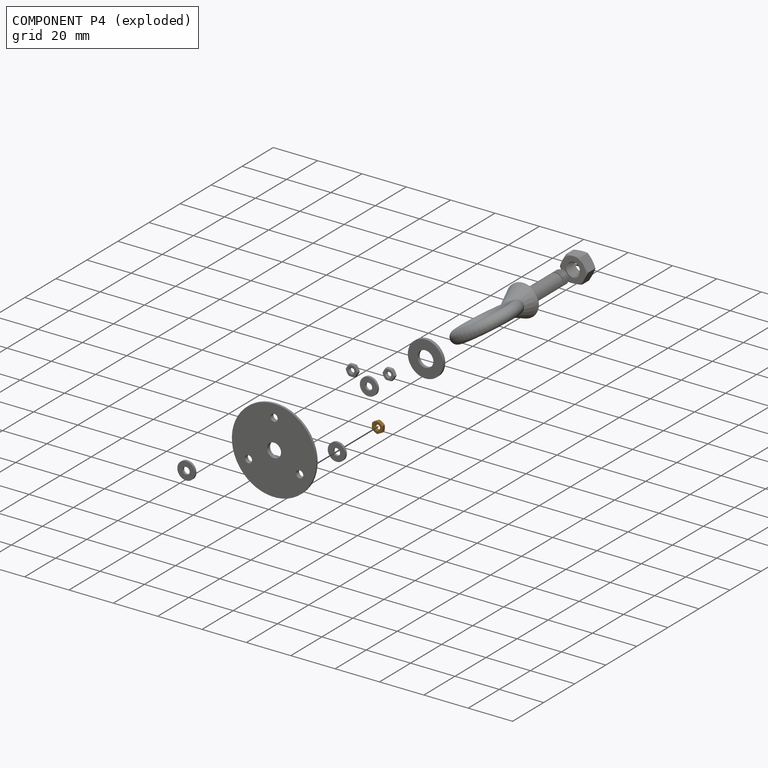
[diagram: component P4 — exploded]
COMPONENT P4 — geometry summary (no construction recipe available for this part):
  bounding box: 5.7 x 5.7 x 2.4 mm
  B-rep topology: 1 solid, 26 faces, 112 edges
  volume: 25 mm^3 (32% of its bounding box)
Held by: CYLINDRICAL mate "Cylindrical 7" to P23; PLANAR mate "Planar 8" to P18; CYLINDRICAL mate "Cylindrical 7" to P23; PLANAR mate "Planar 8" to P18.
